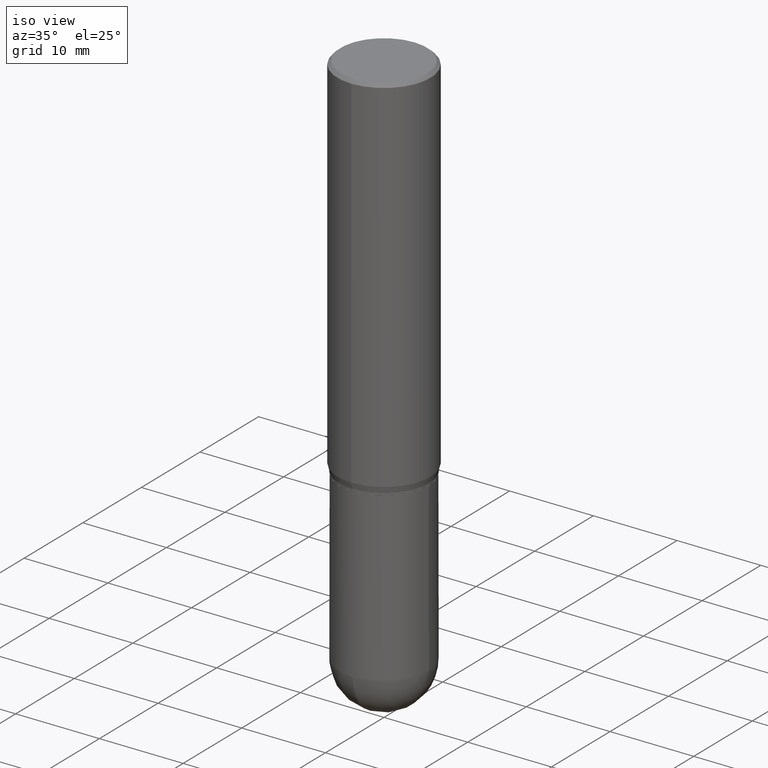
[diagram: clean part render]
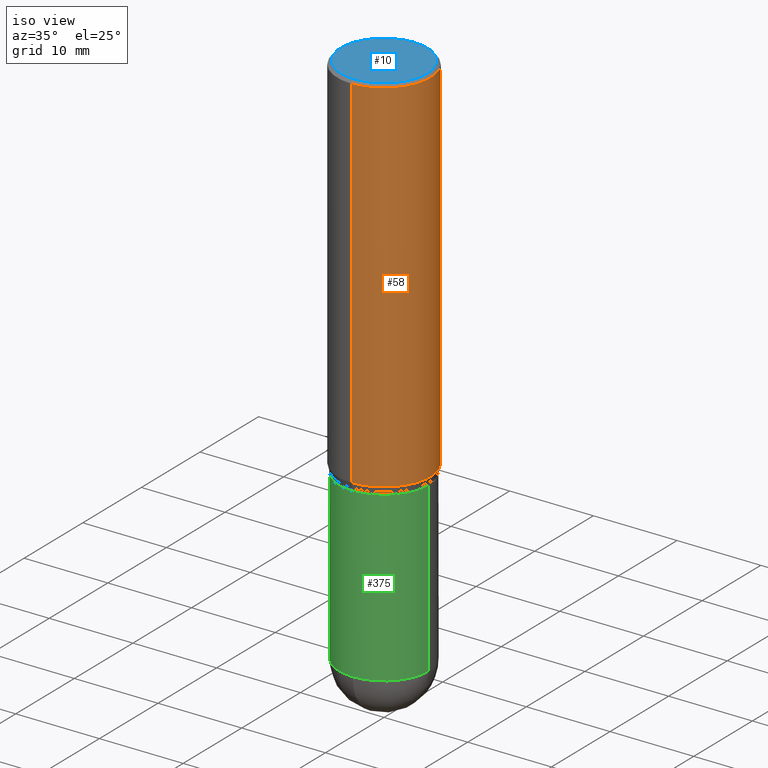
[diagram: same view with three faces highlighted in distinct colors, each labeled with its STEP entity id]
A machine part, iso view with three faces highlighted in distinct colors.
Their STEP definitions:

[orange] entity #58 — the highlighted cylindrical surface (partial cylindrical patch) has radius 5.5562 mm, axis along (-0, 0, 1).
#8 = CARTESIAN_POINT ( 'NONE',  ( 0.000000000000000000, 0.000000000000000000, 0.000000000000000000 ) ) ;
#16 = DIRECTION ( 'NONE',  ( -6.982962677686265133E-15, -1.000000000000000000, 3.492862791899308071E-15 ) ) ;
#24 = VERTEX_POINT ( 'NONE', #48 ) ;
#28 = DIRECTION ( 'NONE',  ( -2.445213881398419455E-29, 3.491846405647142426E-15, 1.000000000000000000 ) ) ;
#37 = CIRCLE ( 'NONE', #225, 0.2187500000000000000 ) ;
#42 = ORIENTED_EDGE ( 'NONE', *, *, #273, .T. ) ;
#48 = CARTESIAN_POINT ( 'NONE',  ( -1.527523085743870054E-15, -0.2187500000000000555, -0.01499999999999943913 ) ) ;
#58 = ADVANCED_FACE ( 'NONE', ( #128 ), #238, .T. ) ;
#63 = VERTEX_POINT ( 'NONE', #347 ) ;
#76 = VECTOR ( 'NONE', #261, 39.37007874015748143 ) ;
#96 = EDGE_CURVE ( 'NONE', #24, #153, #37, .T. ) ;
#118 = CARTESIAN_POINT ( 'NONE',  ( 1.554312234475218762E-15, 0.2187500000000000000, -7.638414012353123441E-16 ) ) ;
#128 = FACE_OUTER_BOUND ( 'NONE', #339, .T. ) ;
#143 = DIRECTION ( 'NONE',  ( -6.982962677686265133E-15, -1.000000000000000000, 3.746534391310989557E-15 ) ) ;
#148 = AXIS2_PLACEMENT_3D ( 'NONE', #213, #28, #143 ) ;
#153 = VERTEX_POINT ( 'NONE', #399 ) ;
#165 = VECTOR ( 'NONE', #343, 39.37007874015748143 ) ;
#167 = DIRECTION ( 'NONE',  ( -2.445213881398419455E-29, 3.491846405647142426E-15, 1.000000000000000000 ) ) ;
#213 = CARTESIAN_POINT ( 'NONE',  ( 4.183491986595387463E-29, -5.974165109880832993E-15, -1.710890003700962669 ) ) ;
#225 = AXIS2_PLACEMENT_3D ( 'NONE', #445, #355, #16 ) ;
#238 = CYLINDRICAL_SURFACE ( 'NONE', #495, 0.2187500000000000000 ) ;
#257 = CARTESIAN_POINT ( 'NONE',  ( 1.554312234475260769E-15, 0.2187499999999940603, -1.710890003700963558 ) ) ;
#261 = DIRECTION ( 'NONE',  ( -2.445213881398419174E-29, 3.491846405647142032E-15, 1.000000000000000000 ) ) ;
#262 = ORIENTED_EDGE ( 'NONE', *, *, #390, .T. ) ;
#264 = LINE ( 'NONE', #118, #165 ) ;
#273 = EDGE_CURVE ( 'NONE', #63, #415, #403, .T. ) ;
#323 = ORIENTED_EDGE ( 'NONE', *, *, #96, .F. ) ;
#339 = EDGE_LOOP ( 'NONE', ( #42, #262, #323, #386 ) ) ;
#342 = LINE ( 'NONE', #381, #76 ) ;
#343 = DIRECTION ( 'NONE',  ( -2.445213881398419174E-29, 3.491846405647142032E-15, 1.000000000000000000 ) ) ;
#347 = CARTESIAN_POINT ( 'NONE',  ( -1.527523085743828442E-15, -0.2187500000000059397, -1.710890003700962003 ) ) ;
#355 = DIRECTION ( 'NONE',  ( -2.445213881398419455E-29, 3.491846405647142426E-15, 1.000000000000000000 ) ) ;
#381 = CARTESIAN_POINT ( 'NONE',  ( -1.527523085743870449E-15, -0.2187500000000000000, 7.638414012353123441E-16 ) ) ;
#386 = ORIENTED_EDGE ( 'NONE', *, *, #409, .F. ) ;
#390 = EDGE_CURVE ( 'NONE', #415, #153, #264, .T. ) ;
#396 = DIRECTION ( 'NONE',  ( -6.982962677686265133E-15, -1.000000000000000000, 3.491846405647142032E-15 ) ) ;
#399 = CARTESIAN_POINT ( 'NONE',  ( 1.554312234475260966E-15, 0.2187499999999999167, -0.01500000000000096742 ) ) ;
#403 = CIRCLE ( 'NONE', #148, 0.2187500000000000000 ) ;
#409 = EDGE_CURVE ( 'NONE', #63, #24, #342, .T. ) ;
#415 = VERTEX_POINT ( 'NONE', #257 ) ;
#445 = CARTESIAN_POINT ( 'NONE',  ( 3.667820822097679051E-31, -5.237769608470784415E-17, -0.01500000000000020241 ) ) ;
#495 = AXIS2_PLACEMENT_3D ( 'NONE', #8, #167, #396 ) ;

[blue] entity #10 — the highlighted planar face has unit normal (0, -0, -1).
#10 = ADVANCED_FACE ( 'NONE', ( #164 ), #312, .F. ) ;
#12 = CARTESIAN_POINT ( 'NONE',  ( 4.947503764566649737E-45, -7.065199232121014556E-31, -2.023341926121067347E-16 ) ) ;
#14 = CARTESIAN_POINT ( 'NONE',  ( -1.449280202029235538E-15, -0.2037499999999999867, 5.091295125384984246E-16 ) ) ;
#25 = AXIS2_PLACEMENT_3D ( 'NONE', #12, #279, #436 ) ;
#31 = ORIENTED_EDGE ( 'NONE', *, *, #502, .T. ) ;
#50 = DIRECTION ( 'NONE',  ( 2.445213881398419455E-29, -3.491846405647142032E-15, -1.000000000000000000 ) ) ;
#74 = ORIENTED_EDGE ( 'NONE', *, *, #142, .T. ) ;
#90 = CARTESIAN_POINT ( 'NONE',  ( 1.475150865661223764E-15, 0.2037499999999999867, -9.137978977627119434E-16 ) ) ;
#92 = AXIS2_PLACEMENT_3D ( 'NONE', #294, #499, #422 ) ;
#97 = VERTEX_POINT ( 'NONE', #14 ) ;
#115 = VERTEX_POINT ( 'NONE', #90 ) ;
#116 = AXIS2_PLACEMENT_3D ( 'NONE', #400, #50, #402 ) ;
#142 = EDGE_CURVE ( 'NONE', #97, #115, #427, .T. ) ;
#164 = FACE_OUTER_BOUND ( 'NONE', #170, .T. ) ;
#170 = EDGE_LOOP ( 'NONE', ( #31, #74 ) ) ;
#279 = DIRECTION ( 'NONE',  ( -2.445213881398419455E-29, 3.491846405647142426E-15, 1.000000000000000000 ) ) ;
#294 = CARTESIAN_POINT ( 'NONE',  ( 4.947503764566649737E-45, -7.065199232121014556E-31, -2.023341926121067347E-16 ) ) ;
#312 = PLANE ( 'NONE',  #116 ) ;
#400 = CARTESIAN_POINT ( 'NONE',  ( 1.422778645578576487E-15, 0.2037499999999999867, -8.126308014566585884E-16 ) ) ;
#402 = DIRECTION ( 'NONE',  ( 6.982962677686265922E-15, 1.000000000000000000, -3.491846405647142032E-15 ) ) ;
#404 = CIRCLE ( 'NONE', #92, 0.2037499999999999867 ) ;
#422 = DIRECTION ( 'NONE',  ( -6.982962677686265133E-15, -1.000000000000000000, 3.491846405647142426E-15 ) ) ;
#427 = CIRCLE ( 'NONE', #25, 0.2037499999999999867 ) ;
#436 = DIRECTION ( 'NONE',  ( -6.982962677686265133E-15, -1.000000000000000000, 3.491846405647142426E-15 ) ) ;
#499 = DIRECTION ( 'NONE',  ( -2.445213881398419455E-29, 3.491846405647142426E-15, 1.000000000000000000 ) ) ;
#502 = EDGE_CURVE ( 'NONE', #115, #97, #404, .T. ) ;

[green] entity #375 — the highlighted cylindrical surface (partial cylindrical patch) has radius 5.3581 mm, axis along (-0, 0, 1).
#1 = VERTEX_POINT ( 'NONE', #20 ) ;
#20 = CARTESIAN_POINT ( 'NONE',  ( 0.2109500000000000541, -8.960624995040515044E-15, -2.539050000000000473 ) ) ;
#39 = DIRECTION ( 'NONE',  ( -2.445468806185136597E-29, 3.491481338843145583E-15, 1.000000000000000000 ) ) ;
#44 = EDGE_LOOP ( 'NONE', ( #382, #364, #136, #420, #469 ) ) ;
#47 = DIRECTION ( 'NONE',  ( -2.445468806185136877E-29, 3.491481338843145188E-15, 1.000000000000000000 ) ) ;
#52 = LINE ( 'NONE', #206, #106 ) ;
#54 = DIRECTION ( 'NONE',  ( 1.000000000000000000, -6.982962677686265133E-15, 0.000000000000000000 ) ) ;
#59 = CARTESIAN_POINT ( 'NONE',  ( 6.209167572344372023E-29, -8.865045693389689499E-15, -2.539050000000000473 ) ) ;
#65 = DIRECTION ( 'NONE',  ( 1.000000000000000000, -6.982962677686265133E-15, 0.000000000000000000 ) ) ;
#68 = DIRECTION ( 'NONE',  ( 1.000000000000000000, -6.982962677686266711E-15, 0.000000000000000000 ) ) ;
#70 = EDGE_CURVE ( 'NONE', #1, #177, #52, .T. ) ;
#73 = CARTESIAN_POINT ( 'NONE',  ( 4.279570410823988484E-29, -6.110092342975504671E-15, -1.750000000000000000 ) ) ;
#91 = VECTOR ( 'NONE', #47, 39.37007874015748143 ) ;
#99 = AXIS2_PLACEMENT_3D ( 'NONE', #139, #283, #65 ) ;
#106 = VECTOR ( 'NONE', #359, 39.37007874015748143 ) ;
#117 = AXIS2_PLACEMENT_3D ( 'NONE', #73, #299, #68 ) ;
#127 = CARTESIAN_POINT ( 'NONE',  ( -0.2109500000000000541, 1.498889901085931727E-15, -1.037649357289272662E-29 ) ) ;
#130 = EDGE_CURVE ( 'NONE', #214, #336, #199, .T. ) ;
#131 = DIRECTION ( 'NONE',  ( -2.445468806185136597E-29, 3.491481338843145583E-15, 1.000000000000000000 ) ) ;
#136 = ORIENTED_EDGE ( 'NONE', *, *, #239, .T. ) ;
#139 = CARTESIAN_POINT ( 'NONE',  ( 6.209167572344372023E-29, -8.865045693389689499E-15, -2.539050000000000473 ) ) ;
#150 = CYLINDRICAL_SURFACE ( 'NONE', #397, 0.2109500000000000541 ) ;
#177 = VERTEX_POINT ( 'NONE', #438 ) ;
#199 = LINE ( 'NONE', #127, #91 ) ;
#205 = CIRCLE ( 'NONE', #268, 0.2109500000000000541 ) ;
#206 = CARTESIAN_POINT ( 'NONE',  ( 0.2109500000000000541, -1.473055976857918157E-15, 1.028629490854152908E-29 ) ) ;
#214 = VERTEX_POINT ( 'NONE', #408 ) ;
#239 = EDGE_CURVE ( 'NONE', #267, #1, #205, .T. ) ;
#252 = EDGE_CURVE ( 'NONE', #214, #267, #373, .T. ) ;
#266 = CARTESIAN_POINT ( 'NONE',  ( 0.000000000000000000, 0.000000000000000000, 0.000000000000000000 ) ) ;
#267 = VERTEX_POINT ( 'NONE', #366 ) ;
#268 = AXIS2_PLACEMENT_3D ( 'NONE', #59, #131, #54 ) ;
#283 = DIRECTION ( 'NONE',  ( -2.445468806185136597E-29, 3.491481338843145583E-15, 1.000000000000000000 ) ) ;
#293 = FACE_OUTER_BOUND ( 'NONE', #44, .T. ) ;
#298 = DIRECTION ( 'NONE',  ( 1.000000000000000000, -6.982962677686265922E-15, 4.876176775795935793E-29 ) ) ;
#299 = DIRECTION ( 'NONE',  ( -2.445468806185136597E-29, 3.491481338843145583E-15, 1.000000000000000000 ) ) ;
#336 = VERTEX_POINT ( 'NONE', #446 ) ;
#359 = DIRECTION ( 'NONE',  ( -2.445468806185136877E-29, 3.491481338843145188E-15, 1.000000000000000000 ) ) ;
#364 = ORIENTED_EDGE ( 'NONE', *, *, #252, .T. ) ;
#366 = CARTESIAN_POINT ( 'NONE',  ( -1.498889901085869604E-15, -0.2109500000000089637, -2.539049999999999585 ) ) ;
#373 = CIRCLE ( 'NONE', #99, 0.2109500000000000541 ) ;
#375 = ADVANCED_FACE ( 'NONE', ( #293 ), #150, .T. ) ;
#382 = ORIENTED_EDGE ( 'NONE', *, *, #130, .F. ) ;
#397 = AXIS2_PLACEMENT_3D ( 'NONE', #266, #39, #298 ) ;
#408 = CARTESIAN_POINT ( 'NONE',  ( -0.2109500000000000541, -5.988679117096665555E-15, -2.539050000000000473 ) ) ;
#420 = ORIENTED_EDGE ( 'NONE', *, *, #70, .T. ) ;
#430 = EDGE_CURVE ( 'NONE', #336, #177, #487, .T. ) ;
#438 = CARTESIAN_POINT ( 'NONE',  ( 0.2109499999999999986, -7.583148319833423025E-15, -1.750000000000000000 ) ) ;
#446 = CARTESIAN_POINT ( 'NONE',  ( -0.2109499999999999986, -5.988679117096665555E-15, -1.750000000000000000 ) ) ;
#469 = ORIENTED_EDGE ( 'NONE', *, *, #430, .F. ) ;
#487 = CIRCLE ( 'NONE', #117, 0.2109499999999999986 ) ;